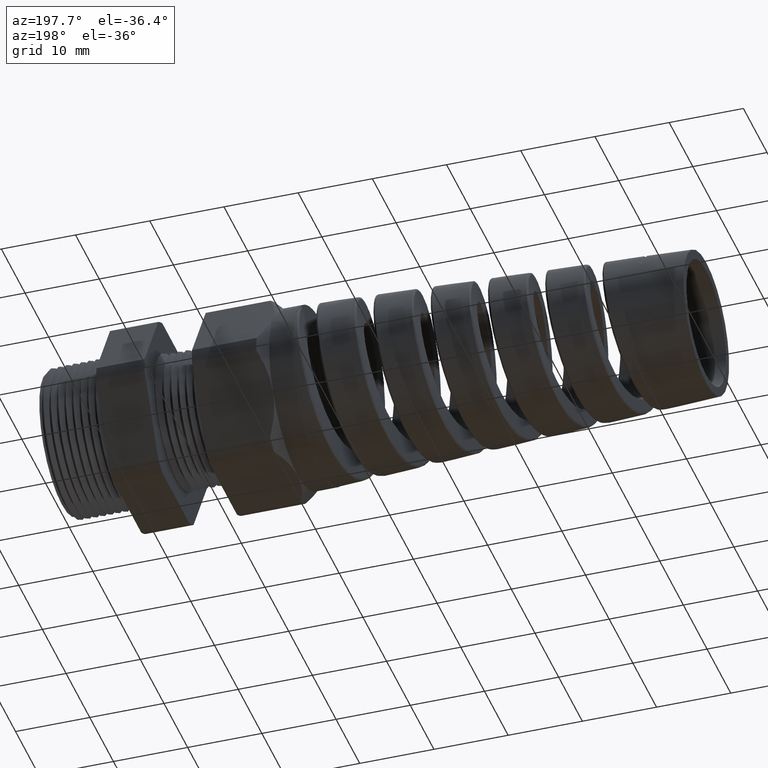
[diagram: clean part render]
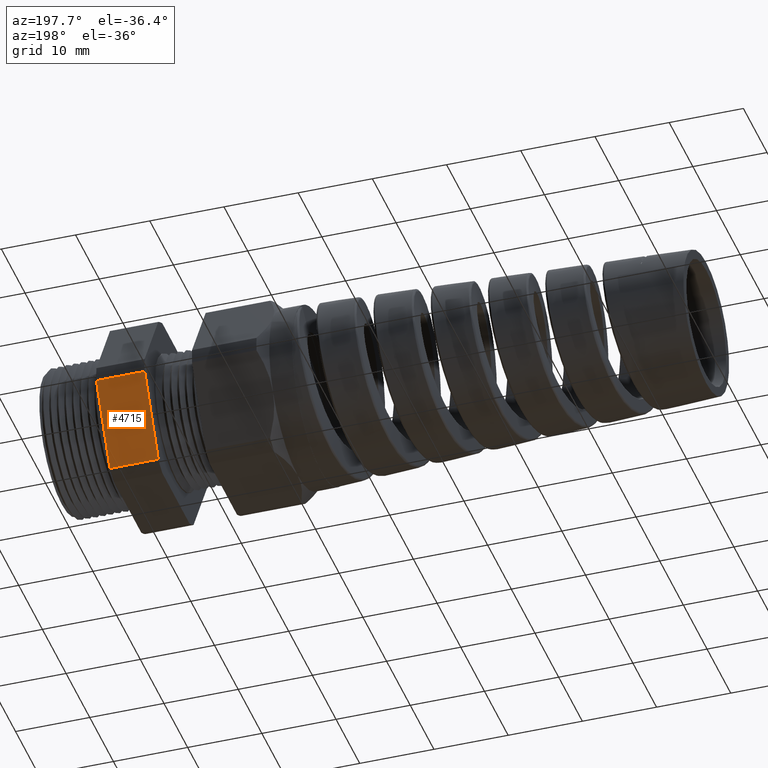
[diagram: same view with one face highlighted and labeled with its STEP entity id]
A machine part, auxiliary view. The second image highlights one B-rep face of the part: STEP entity #4715.
In plain terms, the highlighted planar face has unit normal (0, 0.866, -0.5).
Its self-contained STEP definition (entity closure, byte-faithful):
#4230 = DIRECTION ( 'NONE',  ( 0.0000000000000000000, 0.4999999999999998900, 0.8660254037844386000 ) ) ;
#4231 = VECTOR ( 'NONE', #4230, 39.37007874015748100 ) ;
#4232 = CARTESIAN_POINT ( 'NONE',  ( -0.3100000000000000000, 0.6420319397786863300, 0.1720319397786860300 ) ) ;
#4233 = LINE ( 'NONE', #4232, #4231 ) ;
#4234 = CARTESIAN_POINT ( 'NONE',  ( -0.3100000000000000000, 0.2938165587564949800, -0.4310947921287047700 ) ) ;
#4235 = CARTESIAN_POINT ( 'NONE',  ( -0.3100000000000000000, 0.5202473208008778800, -0.03890520787129524800 ) ) ;
#4640 = EDGE_CURVE ( 'NONE', #12185, #4641, #7298, .T. ) ;
#4641 = VERTEX_POINT ( 'NONE', #7288 ) ;
#4642 = ORIENTED_EDGE ( 'NONE', *, *, #12190, .F. ) ;
#4643 = ORIENTED_EDGE ( 'NONE', *, *, #4644, .T. ) ;
#4644 = EDGE_CURVE ( 'NONE', #12186, #4645, #7287, .T. ) ;
#4645 = VERTEX_POINT ( 'NONE', #7327 ) ;
#4697 = ORIENTED_EDGE ( 'NONE', *, *, #4698, .F. ) ;
#4698 = EDGE_CURVE ( 'NONE', #4641, #4645, #7441, .T. ) ;
#4715 = ADVANCED_FACE ( 'NONE', ( #7479 ), #7478, .T. ) ;
#4716 = EDGE_LOOP ( 'NONE', ( #4717, #4642, #4643, #4697 ) ) ;
#4717 = ORIENTED_EDGE ( 'NONE', *, *, #4640, .F. ) ;
#7287 = LINE ( 'NONE', #7330, #7329 ) ;
#7288 = CARTESIAN_POINT ( 'NONE',  ( -0.5659055118110235500, 0.5202473208008777700, -0.03890520787129524100 ) ) ;
#7289 = DIRECTION ( 'NONE',  ( -1.000000000000000000, 0.0000000000000000000, 0.0000000000000000000 ) ) ;
#7290 = VECTOR ( 'NONE', #7289, 39.37007874015748100 ) ;
#7291 = CARTESIAN_POINT ( 'NONE',  ( 0.04000000000000011900, 0.5202473208008777700, -0.03890520787129524100 ) ) ;
#7298 = LINE ( 'NONE', #7291, #7290 ) ;
#7327 = CARTESIAN_POINT ( 'NONE',  ( -0.5659055118110235500, 0.2938165587564951500, -0.4310947921287046600 ) ) ;
#7328 = DIRECTION ( 'NONE',  ( -1.000000000000000000, 0.0000000000000000000, 0.0000000000000000000 ) ) ;
#7329 = VECTOR ( 'NONE', #7328, 39.37007874015748100 ) ;
#7330 = CARTESIAN_POINT ( 'NONE',  ( 0.04000000000000011900, 0.2938165587564949800, -0.4310947921287047700 ) ) ;
#7438 = DIRECTION ( 'NONE',  ( 0.0000000000000000000, -0.4999999999999998900, -0.8660254037844386000 ) ) ;
#7439 = VECTOR ( 'NONE', #7438, 39.37007874015748100 ) ;
#7440 = CARTESIAN_POINT ( 'NONE',  ( -0.5659055118110235500, 0.6420319397786863300, 0.1720319397786860300 ) ) ;
#7441 = LINE ( 'NONE', #7440, #7439 ) ;
#7474 = DIRECTION ( 'NONE',  ( 0.0000000000000000000, 0.4999999999999998900, 0.8660254037844386000 ) ) ;
#7475 = DIRECTION ( 'NONE',  ( 0.0000000000000000000, 0.8660254037844387100, -0.4999999999999999400 ) ) ;
#7476 = CARTESIAN_POINT ( 'NONE',  ( 0.04000000000000011900, 0.5202473208008777700, -0.03890520787129524100 ) ) ;
#7477 = AXIS2_PLACEMENT_3D ( 'NONE', #7476, #7475, #7474 ) ;
#7478 = PLANE ( 'NONE',  #7477 ) ;
#7479 = FACE_OUTER_BOUND ( 'NONE', #4716, .T. ) ;
#12185 = VERTEX_POINT ( 'NONE', #4235 ) ;
#12186 = VERTEX_POINT ( 'NONE', #4234 ) ;
#12190 = EDGE_CURVE ( 'NONE', #12186, #12185, #4233, .T. ) ;